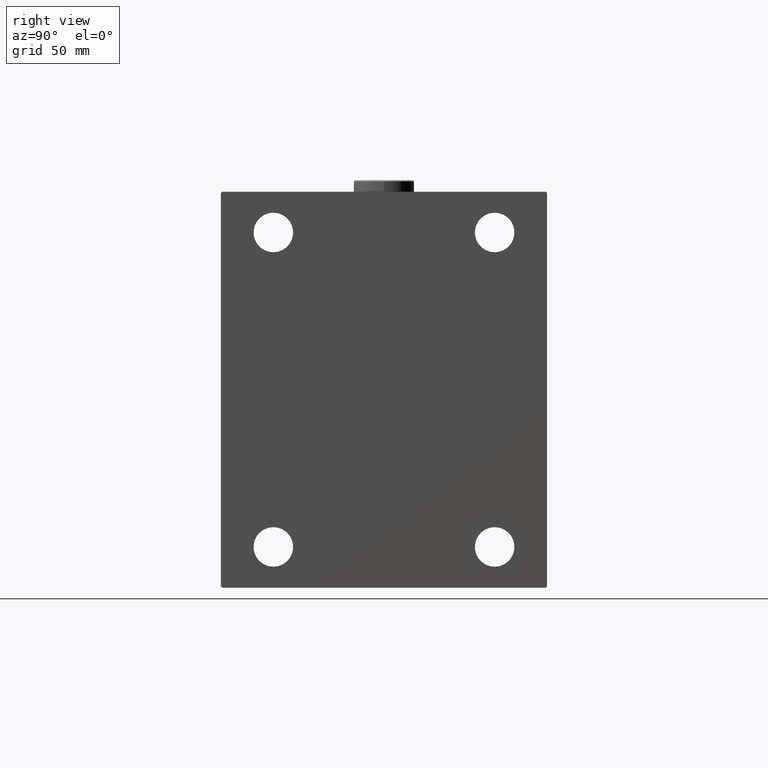
[diagram: clean part render]
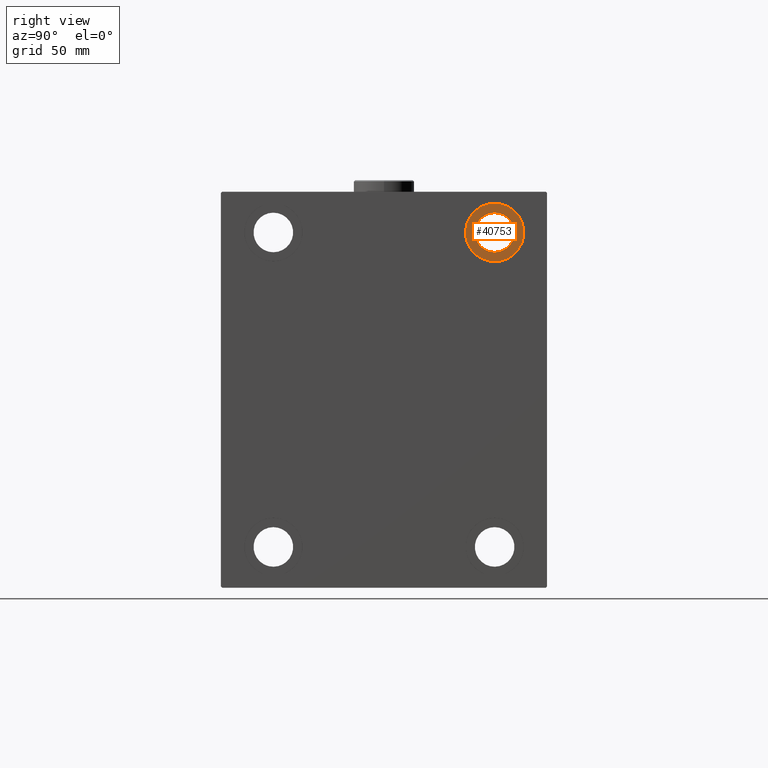
[diagram: same view with one face highlighted and labeled with its STEP entity id]
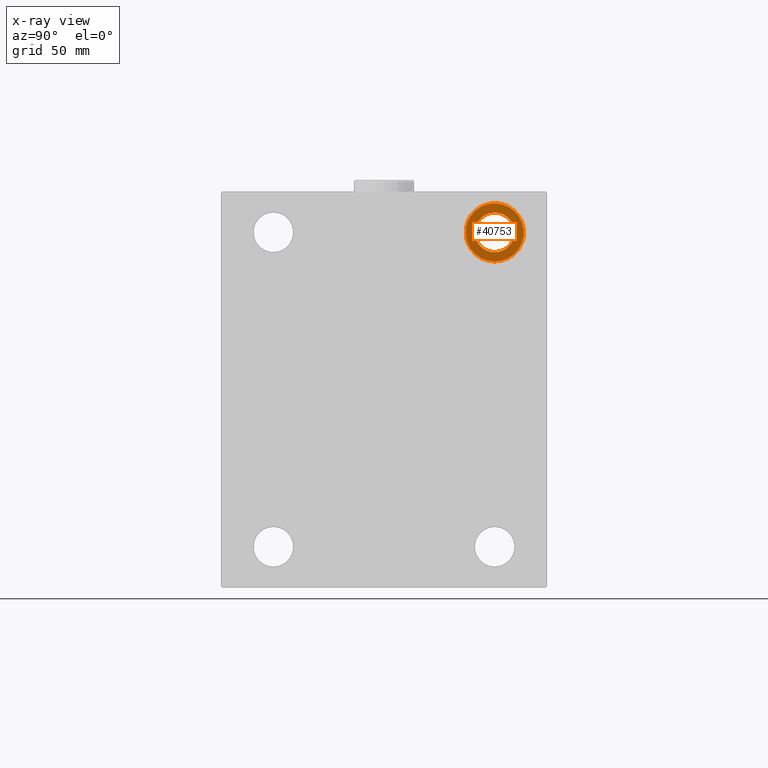
[diagram: x-ray of the same camera — body ghosted, the highlighted face saturated]
A machine part, right view. The second image highlights one B-rep face of the part: STEP entity #40753.
The next image is the same camera in x-ray: the body ghosted, the highlighted face saturated — about 0% of this face is hidden behind the body in this view.
In plain terms, the highlighted planar face has unit normal (1, 0, 0).
Its self-contained STEP definition (entity closure, byte-faithful):
#1762 = DIRECTION ( 'NONE',  ( 0.000000000000000000, 0.000000000000000000, 1.000000000000000000 ) ) ;
#2085 = DIRECTION ( 'NONE',  ( 0.000000000000000000, 0.000000000000000000, 1.000000000000000000 ) ) ;
#2753 = CIRCLE ( 'NONE', #22515, 8.500000000000007105 ) ;
#5828 = AXIS2_PLACEMENT_3D ( 'NONE', #35053, #14196, #35286 ) ;
#6639 = DIRECTION ( 'NONE',  ( 1.000000000000000000, 0.000000000000000000, -0.000000000000000000 ) ) ;
#7620 = EDGE_CURVE ( 'NONE', #20532, #9378, #2753, .T. ) ;
#9378 = VERTEX_POINT ( 'NONE', #9521 ) ;
#9521 = CARTESIAN_POINT ( 'NONE',  ( 188.0000000000000000, 47.50000000000000711, 76.00000000000001421 ) ) ;
#11309 = VERTEX_POINT ( 'NONE', #19544 ) ;
#11355 = DIRECTION ( 'NONE',  ( 0.000000000000000000, 0.000000000000000000, -1.000000000000000000 ) ) ;
#12538 = EDGE_CURVE ( 'NONE', #32544, #11309, #25610, .T. ) ;
#14176 = AXIS2_PLACEMENT_3D ( 'NONE', #29971, #43693, #1762 ) ;
#14196 = DIRECTION ( 'NONE',  ( -1.000000000000000000, -0.000000000000000000, -0.000000000000000000 ) ) ;
#14338 = CARTESIAN_POINT ( 'NONE',  ( 188.0000000000000000, 47.50000000000000711, 67.50000000000000000 ) ) ;
#14433 = CIRCLE ( 'NONE', #25516, 8.500000000000007105 ) ;
#15861 = ORIENTED_EDGE ( 'NONE', *, *, #12538, .F. ) ;
#19240 = CARTESIAN_POINT ( 'NONE',  ( 188.0000000000000000, 47.50000000000000711, 59.00000000000000000 ) ) ;
#19316 = CIRCLE ( 'NONE', #14176, 12.50000000000001066 ) ;
#19544 = CARTESIAN_POINT ( 'NONE',  ( 188.0000000000000000, 47.50000000000000711, 55.00000000000000000 ) ) ;
#20354 = DIRECTION ( 'NONE',  ( 0.000000000000000000, 0.000000000000000000, -1.000000000000000000 ) ) ;
#20532 = VERTEX_POINT ( 'NONE', #19240 ) ;
#22515 = AXIS2_PLACEMENT_3D ( 'NONE', #14338, #28331, #11355 ) ;
#24069 = CARTESIAN_POINT ( 'NONE',  ( 188.0000000000000000, 47.50000000000000711, 80.00000000000001421 ) ) ;
#24071 = PLANE ( 'NONE',  #41042 ) ;
#24250 = DIRECTION ( 'NONE',  ( -1.000000000000000000, -0.000000000000000000, -0.000000000000000000 ) ) ;
#25191 = ORIENTED_EDGE ( 'NONE', *, *, #25216, .F. ) ;
#25216 = EDGE_CURVE ( 'NONE', #11309, #32544, #19316, .T. ) ;
#25379 = EDGE_LOOP ( 'NONE', ( #38135, #42129 ) ) ;
#25516 = AXIS2_PLACEMENT_3D ( 'NONE', #34344, #24250, #20354 ) ;
#25610 = CIRCLE ( 'NONE', #5828, 12.50000000000001066 ) ;
#25784 = EDGE_LOOP ( 'NONE', ( #25191, #15861 ) ) ;
#28331 = DIRECTION ( 'NONE',  ( -1.000000000000000000, -0.000000000000000000, -0.000000000000000000 ) ) ;
#29971 = CARTESIAN_POINT ( 'NONE',  ( 188.0000000000000000, 47.50000000000000711, 67.50000000000000000 ) ) ;
#30966 = EDGE_CURVE ( 'NONE', #9378, #20532, #14433, .T. ) ;
#32544 = VERTEX_POINT ( 'NONE', #24069 ) ;
#34166 = FACE_BOUND ( 'NONE', #25379, .T. ) ;
#34344 = CARTESIAN_POINT ( 'NONE',  ( 188.0000000000000000, 47.50000000000000711, 67.50000000000000000 ) ) ;
#35053 = CARTESIAN_POINT ( 'NONE',  ( 188.0000000000000000, 47.50000000000000711, 67.50000000000000000 ) ) ;
#35286 = DIRECTION ( 'NONE',  ( 0.000000000000000000, 0.000000000000000000, 1.000000000000000000 ) ) ;
#37818 = CARTESIAN_POINT ( 'NONE',  ( 188.0000000000000000, 0.000000000000000000, 0.000000000000000000 ) ) ;
#38048 = FACE_OUTER_BOUND ( 'NONE', #25784, .T. ) ;
#38135 = ORIENTED_EDGE ( 'NONE', *, *, #30966, .T. ) ;
#40753 = ADVANCED_FACE ( 'NONE', ( #38048, #34166 ), #24071, .T. ) ;
#41042 = AXIS2_PLACEMENT_3D ( 'NONE', #37818, #6639, #2085 ) ;
#42129 = ORIENTED_EDGE ( 'NONE', *, *, #7620, .T. ) ;
#43693 = DIRECTION ( 'NONE',  ( -1.000000000000000000, -0.000000000000000000, -0.000000000000000000 ) ) ;